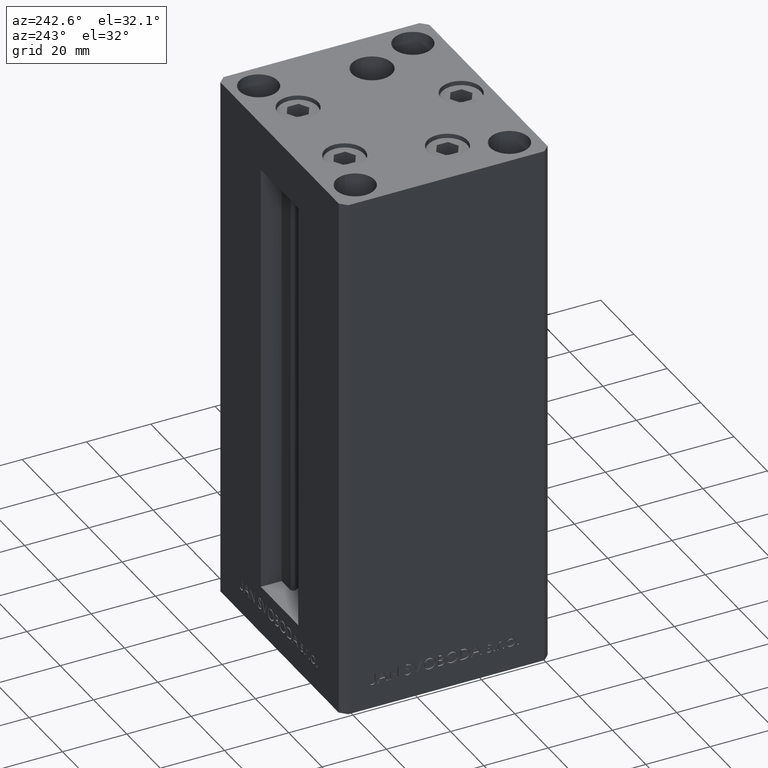
[diagram: clean part render]
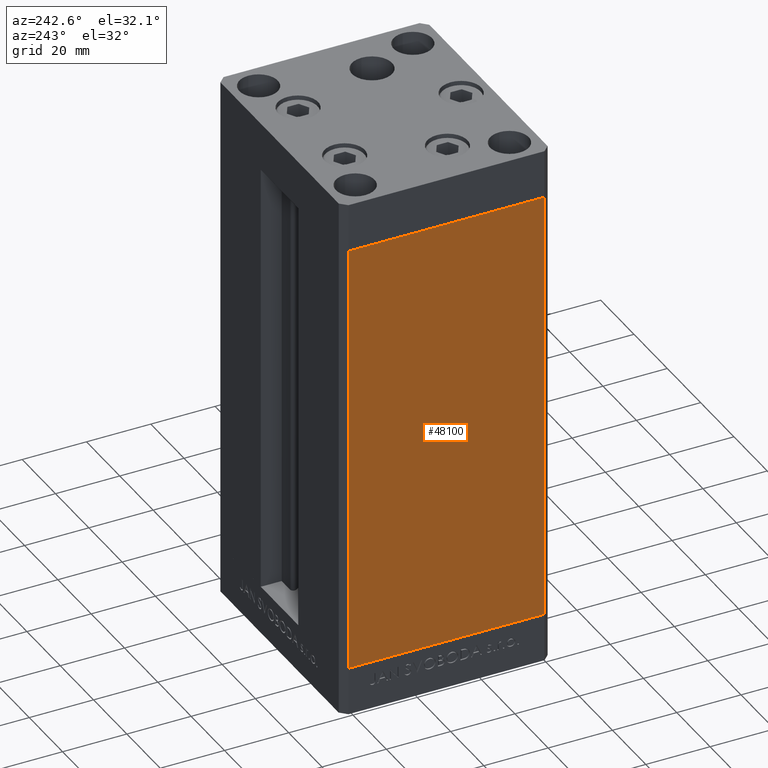
[diagram: same view with one face highlighted and labeled with its STEP entity id]
A machine part, auxiliary view. The second image highlights one B-rep face of the part: STEP entity #48100.
In plain terms, the highlighted planar face has unit normal (1, 0, 0).
Its self-contained STEP definition (entity closure, byte-faithful):
#766 = DIRECTION ( 'NONE',  ( 1.000000000000000000, 2.275047181608927644E-16, -0.000000000000000000 ) ) ;
#1082 = EDGE_CURVE ( 'NONE', #39209, #37367, #20459, .T. ) ;
#1505 = EDGE_LOOP ( 'NONE', ( #21656, #3873, #6695, #48168 ) ) ;
#1547 = DIRECTION ( 'NONE',  ( 2.275047181608927644E-16, -1.000000000000000000, 0.000000000000000000 ) ) ;
#2169 = VECTOR ( 'NONE', #18921, 1000.000000000000000 ) ;
#2917 = LINE ( 'NONE', #30307, #32666 ) ;
#3496 = EDGE_CURVE ( 'NONE', #44545, #39209, #4280, .T. ) ;
#3873 = ORIENTED_EDGE ( 'NONE', *, *, #1082, .F. ) ;
#3893 = DIRECTION ( 'NONE',  ( 2.275047181608927644E-16, -1.000000000000000000, 0.000000000000000000 ) ) ;
#4280 = LINE ( 'NONE', #43175, #5788 ) ;
#5788 = VECTOR ( 'NONE', #1547, 1000.000000000000000 ) ;
#6368 = CARTESIAN_POINT ( 'NONE',  ( -37.50000000000000711, 30.50000000000000000, 136.0000000000000000 ) ) ;
#6695 = ORIENTED_EDGE ( 'NONE', *, *, #3496, .F. ) ;
#7427 = VERTEX_POINT ( 'NONE', #49013 ) ;
#8959 = DIRECTION ( 'NONE',  ( -2.275047181608927644E-16, 1.000000000000000000, 0.000000000000000000 ) ) ;
#14942 = CARTESIAN_POINT ( 'NONE',  ( -37.50000000000000711, 30.50000000000000000, 136.0000000000000000 ) ) ;
#16151 = EDGE_CURVE ( 'NONE', #7427, #37367, #2917, .T. ) ;
#18676 = LINE ( 'NONE', #14942, #2169 ) ;
#18921 = DIRECTION ( 'NONE',  ( -0.000000000000000000, -0.000000000000000000, -1.000000000000000000 ) ) ;
#19941 = PLANE ( 'NONE',  #27715 ) ;
#20459 = LINE ( 'NONE', #40814, #36749 ) ;
#21656 = ORIENTED_EDGE ( 'NONE', *, *, #16151, .T. ) ;
#23685 = FACE_OUTER_BOUND ( 'NONE', #1505, .T. ) ;
#25564 = EDGE_CURVE ( 'NONE', #44545, #7427, #18676, .T. ) ;
#27715 = AXIS2_PLACEMENT_3D ( 'NONE', #46124, #766, #8959 ) ;
#30307 = CARTESIAN_POINT ( 'NONE',  ( -37.50000000000000711, 30.50000000000000000, 0.000000000000000000 ) ) ;
#32666 = VECTOR ( 'NONE', #3893, 1000.000000000000000 ) ;
#34317 = CARTESIAN_POINT ( 'NONE',  ( -37.49999999999999289, -30.50000000000000000, 0.000000000000000000 ) ) ;
#36749 = VECTOR ( 'NONE', #37317, 1000.000000000000000 ) ;
#37317 = DIRECTION ( 'NONE',  ( -0.000000000000000000, -0.000000000000000000, -1.000000000000000000 ) ) ;
#37367 = VERTEX_POINT ( 'NONE', #34317 ) ;
#39209 = VERTEX_POINT ( 'NONE', #41010 ) ;
#40814 = CARTESIAN_POINT ( 'NONE',  ( -37.49999999999999289, -30.50000000000000000, 136.0000000000000000 ) ) ;
#41010 = CARTESIAN_POINT ( 'NONE',  ( -37.49999999999999289, -30.50000000000000000, 136.0000000000000000 ) ) ;
#43175 = CARTESIAN_POINT ( 'NONE',  ( -37.50000000000000711, 30.50000000000000000, 136.0000000000000000 ) ) ;
#44545 = VERTEX_POINT ( 'NONE', #6368 ) ;
#46124 = CARTESIAN_POINT ( 'NONE',  ( -37.50000000000000711, 30.50000000000000000, 136.0000000000000000 ) ) ;
#48100 = ADVANCED_FACE ( 'NONE', ( #23685 ), #19941, .F. ) ;
#48168 = ORIENTED_EDGE ( 'NONE', *, *, #25564, .T. ) ;
#49013 = CARTESIAN_POINT ( 'NONE',  ( -37.50000000000000711, 30.50000000000000000, 0.000000000000000000 ) ) ;